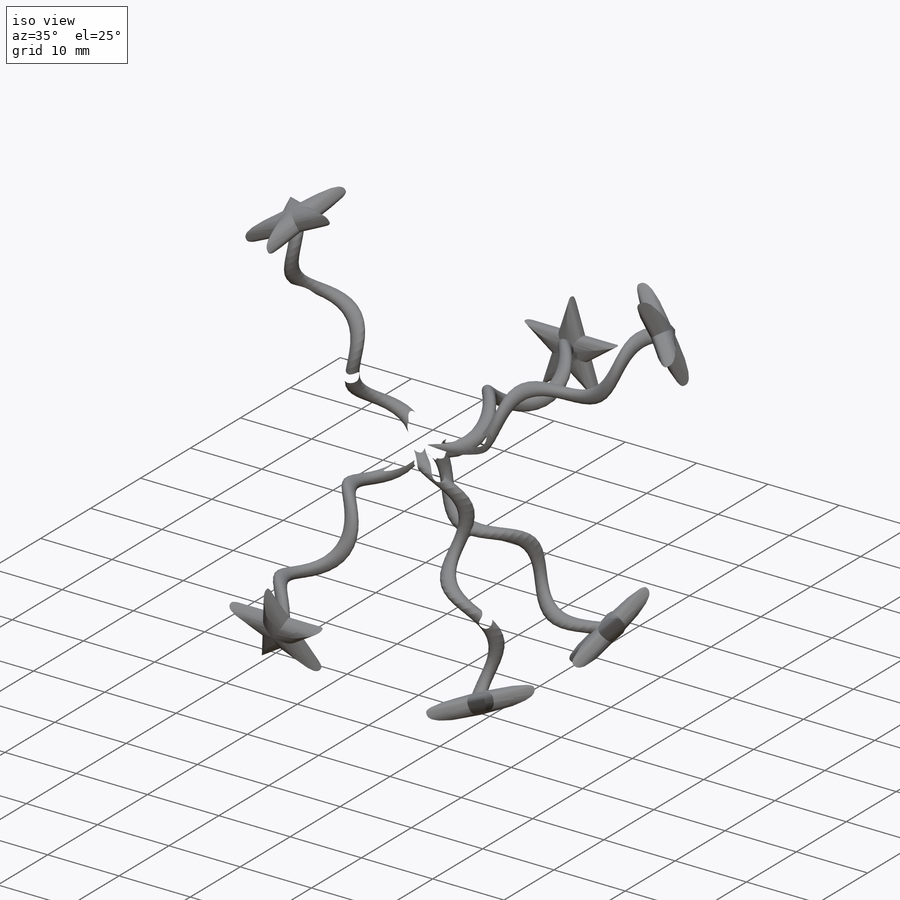
[diagram: iso view]
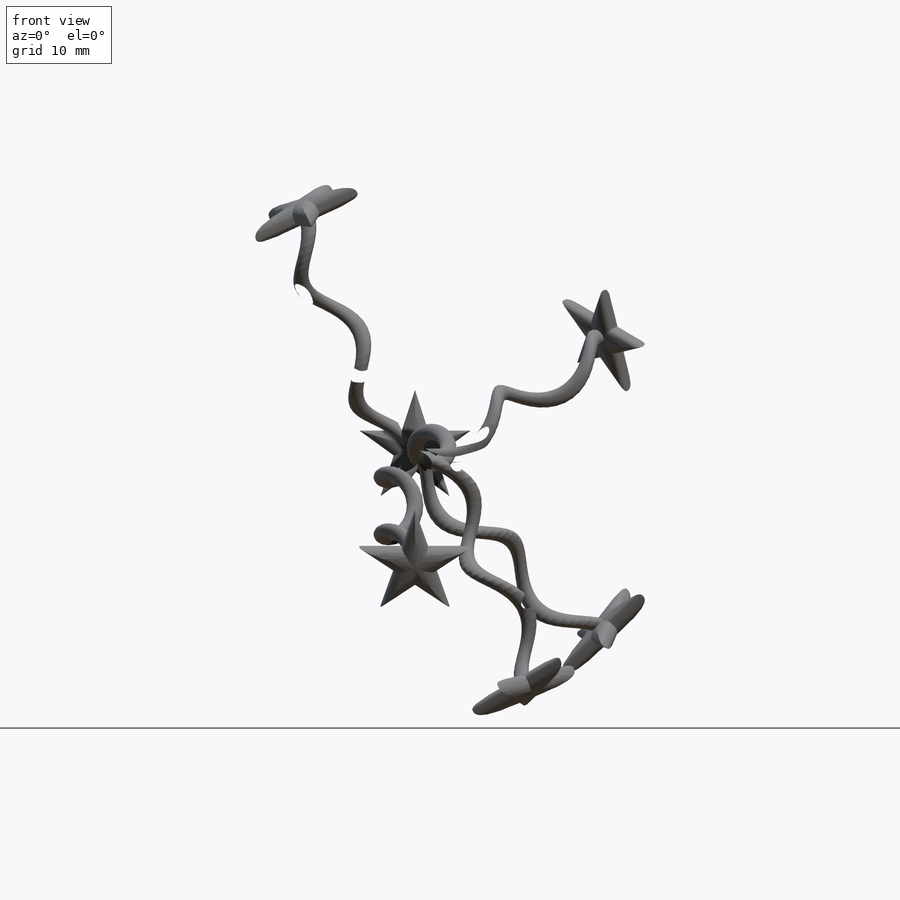
[diagram: front view]
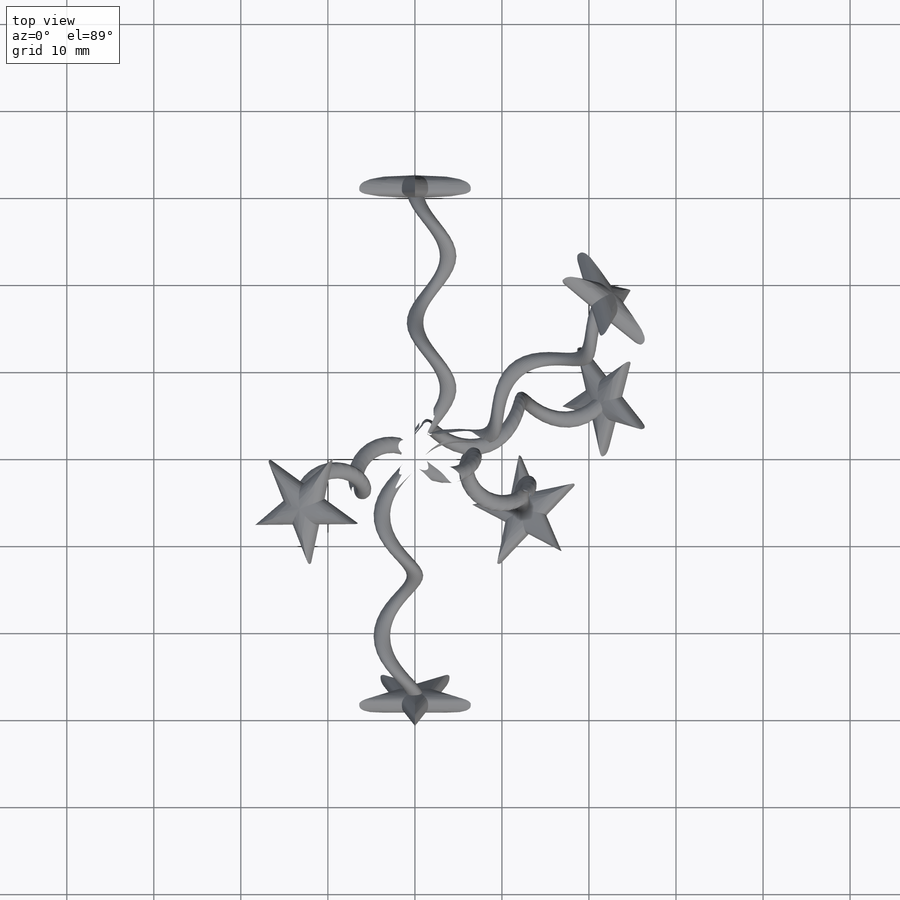
[diagram: top view]
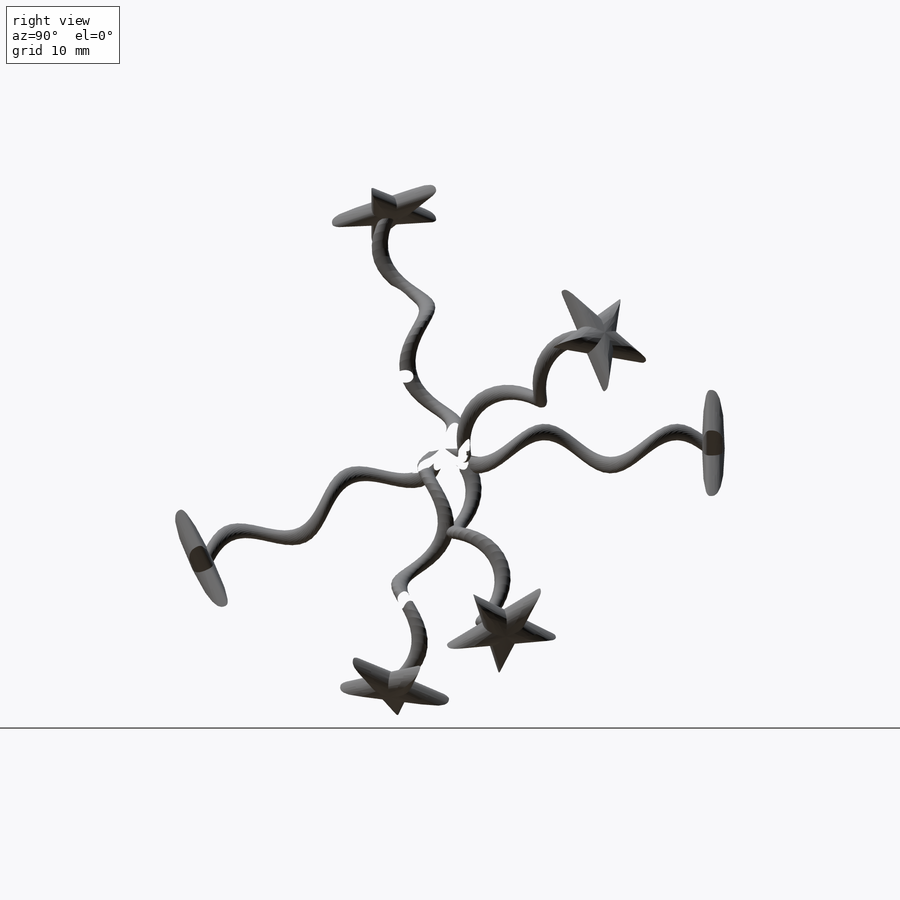
[diagram: right view]
SOLIDWORKS PART (.sldprt)
format: sldprt  version: not decoded by parser v0  size: 13,659,648 bytes
history: native  units: mm
features: sketch x9, pattern_circular x4, plane x3, sweep x3, helix x2, dome x2, boolean_combine x2, material x1, extrude x1, move_body x1, mirror x1 (+13 scaffold rows collapsed)
feature tree (42):
  scaffold x13  (default folders/planes/origin — collapsed)
  material  "Material <not specified>"
  plane  "Plane1"  Offset=50.8mm
  sketch  "Sketch4"  dims[D1=6.35mm]
  helix  "Helix/Spiral1"  Pitch=50.8mm
  sketch  "Sketch5"  dims[D1=3.175mm]
  sweep  "Sweep1"
  sketch  "Sketch2"  dims[D1=1.5875mm]
  sketch  "Sketch3"  dims[D1=20.32mm]
  extrude  "Boss-Extrude2"  Depth=0.254mm
  dome  "Dome1"
  dome  "Dome2"
  boolean_combine  "Combine1"
  pattern_circular  "CirPattern1"  Count=8 Angle=360deg
  pattern_circular  "CirPattern2"  Count=5 Angle=36deg
  pattern_circular  "CirPattern3"  Count=7 Angle=153deg
  move_body  "Body-Move/Copy1"
  pattern_circular  "CirPattern4"  Count=7 Angle=360deg
  mirror  "Mirror1"
  boolean_combine  "Combine2"
  sketch  "Sketch6"  dims[D1=3.175mm]
  sketch  "Sketch7"  dims[D1=6.35mm]
  helix  "Helix/Spiral2"  Pitch=58.166mm
  sweep  "Sweep2"
  sketch  "Sketch8"
  plane  "Plane2"
  plane  "Plane3"
  sketch  "Sketch9"  dims[c1.D1=6.35mm c1.D2=~3.177747mm c2.D2=118.0deg]
  sketch  "Sketch10"  dims[D1=0.0mm]
  sweep  "Sweep3"
decode coverage: 15 of 25 modeling features carry decoded parameters
note: ~ marks probable driven/reference dimensions
note: suppression state not decoded; provenance and decode notes live in map.json
